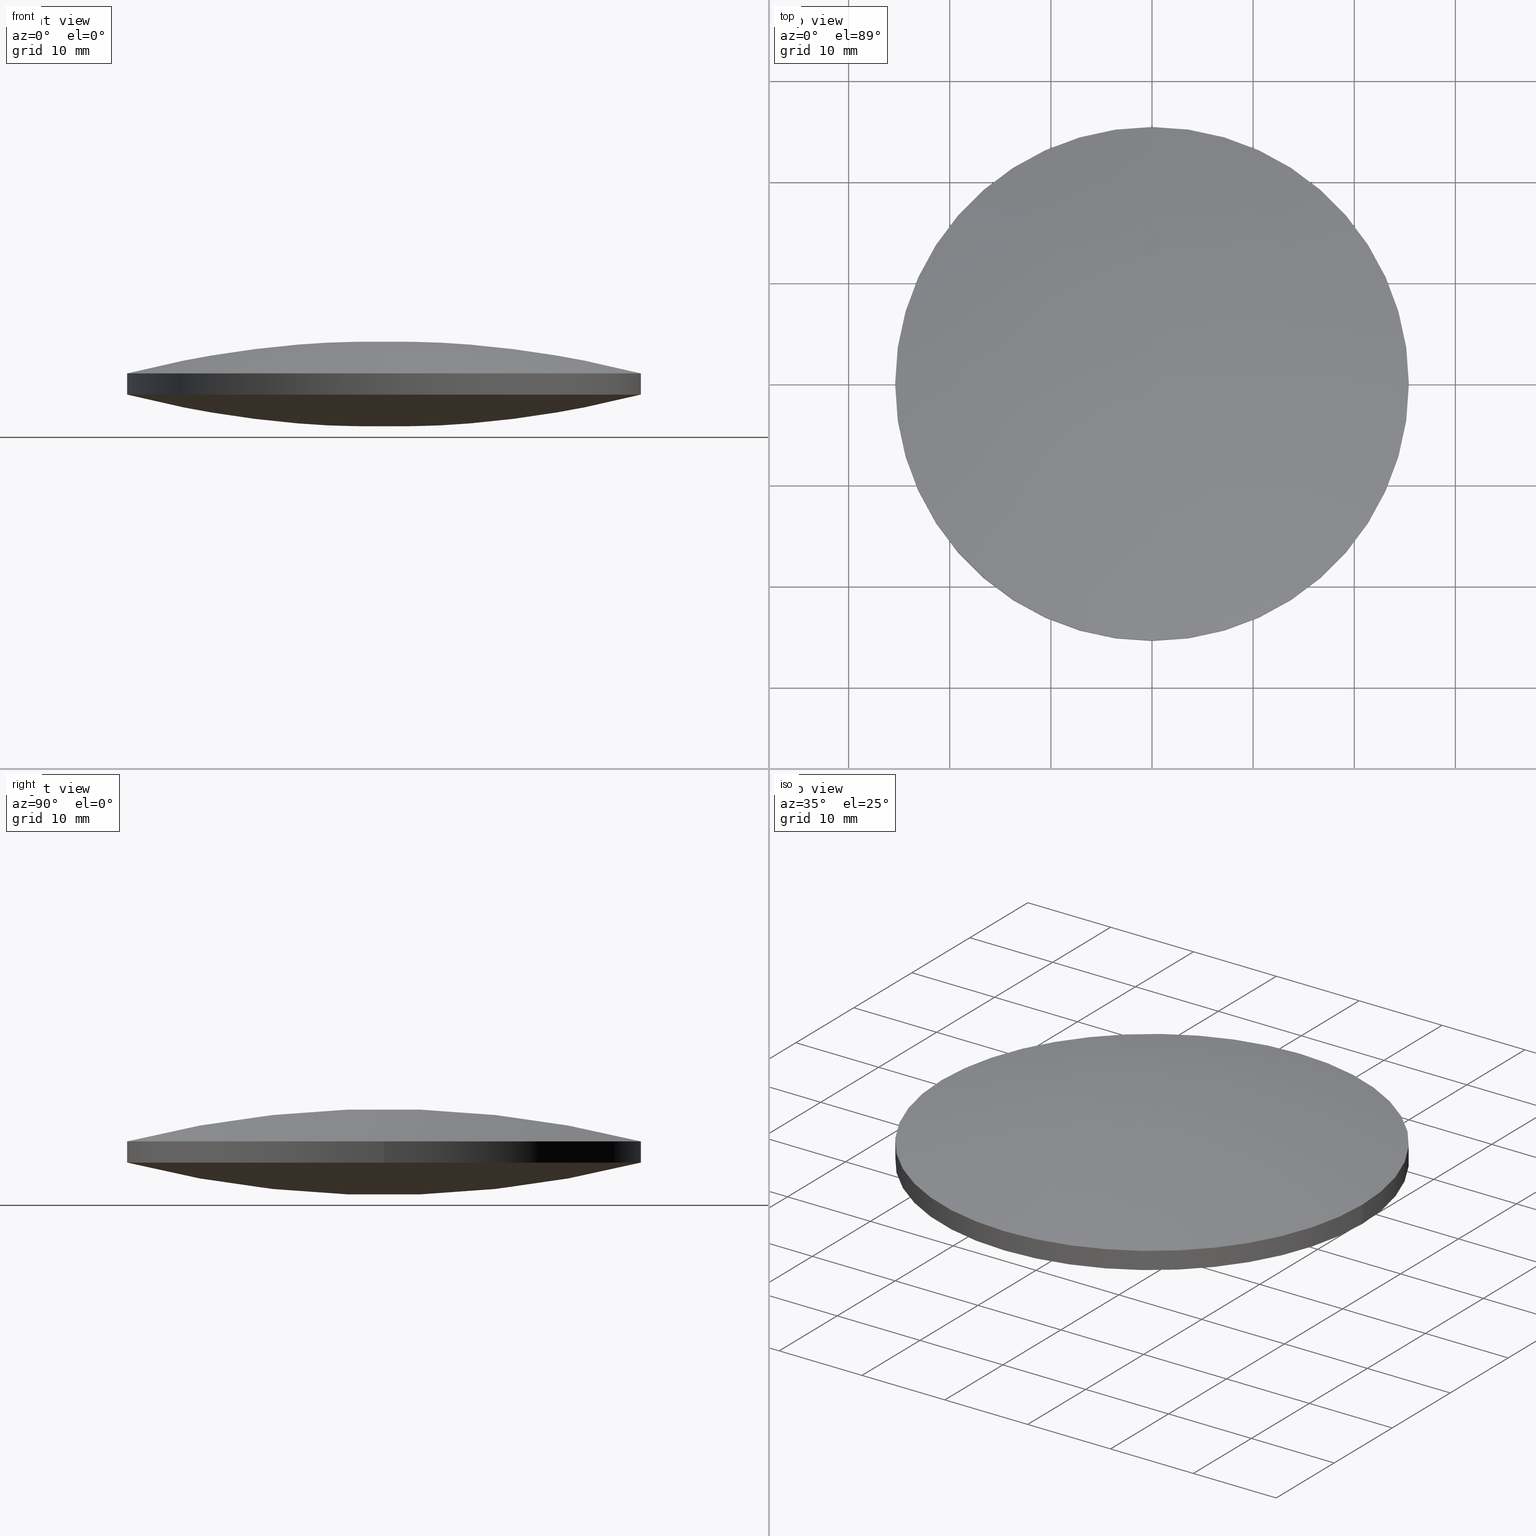
[diagram: canonical four-view strip — front | top / right | iso, engineering-drawing reading convention]
A machine part, canonical four-view strip (front | top / right | iso — engineering-drawing reading convention). The complete STEP part file that produces these views, byte-faithful:
ISO-10303-21;
HEADER;
FILE_DESCRIPTION (( 'STEP AP203' ),
    '1' );
FILE_NAME ('111-0510E BK7 bi-cx 50.8 F100.STEP',
    '2019-01-11T07:02:29',
    ( '' ),
    ( '' ),
    'SwSTEP 2.0',
    'SolidWorks 2017',
    '' );
FILE_SCHEMA (( 'CONFIG_CONTROL_DESIGN' ));
ENDSEC;

DATA;
#1 = DIRECTION ( 'NONE',  ( 1.000000000000000000, 0.0000000000000000000, 0.0000000000000000000 ) ) ;
#2 = VECTOR ( 'NONE', #277, 1000.000000000000000 ) ;
#3 = CC_DESIGN_APPROVAL ( #223, ( #38 ) ) ;
#4 = DIRECTION ( 'NONE',  ( -0.0000000000000000000, -0.0000000000000000000, -1.000000000000000000 ) ) ;
#5 = CARTESIAN_POINT ( 'NONE',  ( 9.992007221626412800E-016, 4.884981308350691100E-015, 3.203430937292290000 ) ) ;
#6 = ORIENTED_EDGE ( 'NONE', *, *, #190, .T. ) ;
#7 = CARTESIAN_POINT ( 'NONE',  ( 17.37999393760358700, 8.753207586920991500, 8.519118617901263200 ) ) ;
#8 = ORIENTED_EDGE ( 'NONE', *, *, #145, .T. ) ;
#9 = CARTESIAN_POINT ( 'NONE',  ( -2.131628207280299900E-014, 1.421085471520200100E-014, 102.3000000000000000 ) ) ;
#10 = ADVANCED_FACE ( 'NONE', ( #188 ), #226, .T. ) ;
#11 = CARTESIAN_POINT ( 'NONE',  ( 8.353687461122605700, 25.69826089171851500, 3.280358579011350100 ) ) ;
#12 = CARTESIAN_POINT ( 'NONE',  ( 25.82821182092977700, 8.753207586920993300, 2.159851191880215500 ) ) ;
#13 = APPLICATION_PROTOCOL_DEFINITION ( 'international standard', 'config_control_design', 1994, #241 ) ;
#14 = ORIENTED_EDGE ( 'NONE', *, *, #178, .T. ) ;
#15 = CARTESIAN_POINT ( 'NONE',  ( 8.724694541133880300, -8.753207586920975600, -1.117338629357474100 ) ) ;
#16 = AXIS2_PLACEMENT_3D ( 'NONE', #9, #168, #117 ) ;
#17 = EDGE_LOOP ( 'NONE', ( #169, #182, #51, #6, #268, #200 ) ) ;
#18 = EDGE_CURVE ( 'NONE', #149, #100, #58, .T. ) ;
#19 = VERTEX_POINT ( 'NONE', #23 ) ;
#20 = ORGANIZATION ( 'UNSPECIFIED', 'UNSPECIFIED', '' ) ;
#21 = PRODUCT_DEFINITION_SHAPE ( 'NONE', 'NONE',  #73 ) ;
#22 = ORIENTED_EDGE ( 'NONE', *, *, #178, .F. ) ;
#23 = CARTESIAN_POINT ( 'NONE',  ( 2.131628207280299900E-014, -25.40000000000001300, 5.296569062707712700 ) ) ;
#24 = ORIENTED_EDGE ( 'NONE', *, *, #18, .T. ) ;
#25 = CALENDAR_DATE ( 2019, 11, 1 ) ;
#26 = DIRECTION ( 'NONE',  ( -0.0000000000000000000, -0.0000000000000000000, -1.000000000000000000 ) ) ;
#27 = CARTESIAN_POINT ( 'NONE',  ( 4.510281037539698400E-014, 25.69826089171852600, 5.219641420988648600 ) ) ;
#28 = CARTESIAN_POINT ( 'NONE',  ( 25.39999999999999900, 4.884981308350691100E-015, 3.203430937292290000 ) ) ;
#29 = LINE ( 'NONE', #259, #2 ) ;
#30 = CARTESIAN_POINT ( 'NONE',  ( 16.64093072215191800, -25.69826089171851500, 4.168121886865968400 ) ) ;
#31 = CARTESIAN_POINT ( 'NONE',  ( 4.510281037539698400E-014, -8.753207586920986200, 9.617338629357462300 ) ) ;
#32 = CC_DESIGN_PERSON_AND_ORGANIZATION_ASSIGNMENT ( #111, #106, ( #123 ) ) ;
#33 = EDGE_LOOP ( 'NONE', ( #139, #42, #89 ) ) ;
#34 = PERSON_AND_ORGANIZATION ( #59, #20 ) ;
#35 = MECHANICAL_CONTEXT ( 'NONE', #241, 'mechanical' ) ;
#36 = CARTESIAN_POINT ( 'NONE',  ( 16.64093072215191800, 25.69826089171851500, 4.331878113134028900 ) ) ;
#37 = CARTESIAN_POINT ( 'NONE',  ( 17.37999393760357600, 8.753207586920993300, -0.01911861790124865700 ) ) ;
#38 = PRODUCT_DEFINITION_FORMATION_WITH_SPECIFIED_SOURCE ( 'ANY', '', #113, .NOT_KNOWN. ) ;
#39 = ORIENTED_EDGE ( 'NONE', *, *, #238, .T. ) ;
#40 = AXIS2_PLACEMENT_3D ( 'NONE', #236, #26, #257 ) ;
#41 = CARTESIAN_POINT ( 'NONE',  ( 2.131628207280299900E-014, 8.753207586920989800, 9.617338629357481800 ) ) ;
#42 = ORIENTED_EDGE ( 'NONE', *, *, #135, .T. ) ;
#43 =( GEOMETRIC_REPRESENTATION_CONTEXT ( 3 ) GLOBAL_UNCERTAINTY_ASSIGNED_CONTEXT ( ( #109 ) ) GLOBAL_UNIT_ASSIGNED_CONTEXT ( ( #77, #216, #74 ) ) REPRESENTATION_CONTEXT ( 'NONE', 'WORKASPACE' ) );
#44 = DIRECTION ( 'NONE',  ( 1.000000000000000000, 0.0000000000000000000, 0.0000000000000000000 ) ) ;
#45 = CARTESIAN_POINT ( 'NONE',  ( -16.64093072215192800, -25.69826089171849800, 4.331878113134026300 ) ) ;
#46 = CARTESIAN_POINT ( 'NONE',  ( -17.37999393760358700, 8.753207586920993300, -0.01911861790125212600 ) ) ;
#47 = COORDINATED_UNIVERSAL_TIME_OFFSET ( 2, 0, .AHEAD. ) ;
#48 = CARTESIAN_POINT ( 'NONE',  ( 16.64093072215192800, 25.69826089171852200, 4.168121886865981700 ) ) ;
#49 = CC_DESIGN_DATE_AND_TIME_ASSIGNMENT ( #291, #177, ( #123 ) ) ;
#50 = PERSON_AND_ORGANIZATION_ROLE ( 'design_owner' ) ;
#51 = ORIENTED_EDGE ( 'NONE', *, *, #71, .T. ) ;
#52 = CARTESIAN_POINT ( 'NONE',  ( 25.82821182092977700, -8.753207586920977300, 2.159851191880213700 ) ) ;
#53 = FACE_OUTER_BOUND ( 'NONE', #82, .T. ) ;
#54 = DIRECTION ( 'NONE',  ( -0.0000000000000000000, -0.0000000000000000000, -1.000000000000000000 ) ) ;
#55 = VERTEX_POINT ( 'NONE', #231 ) ;
#56 = EDGE_CURVE ( 'NONE', #100, #191, #118, .T. ) ;
#57 = PERSON_AND_ORGANIZATION ( #59, #20 ) ;
#58 = CIRCLE ( 'NONE', #181, 25.39999999999999900 ) ;
#59 = PERSON ( 'UNSPECIFIED', 'UNSPECIFIED', 'UNSPECIFIED', ('UNSPECIFIED'), ('UNSPECIFIED'), ('UNSPECIFIED') ) ;
#60 = PRODUCT_RELATED_PRODUCT_CATEGORY ( 'detail', '', ( #113 ) ) ;
#61 = CIRCLE ( 'NONE', #273, 25.39999999999999900 ) ;
#62 = CARTESIAN_POINT ( 'NONE',  ( -24.72989836085183400, -25.69826089171851500, 2.081810132074090700 ) ) ;
#63 = CARTESIAN_POINT ( 'NONE',  ( -8.353687461122604000, -25.69826089171851500, 5.219641420988644100 ) ) ;
#64 = EDGE_LOOP ( 'NONE', ( #263, #8, #292 ) ) ;
#65 = DATE_AND_TIME ( #25, #131 ) ;
#66 = CARTESIAN_POINT ( 'NONE',  ( 9.992007221626412800E-016, 4.884981308350691100E-015, 3.203430937292290000 ) ) ;
#67 = CARTESIAN_POINT ( 'NONE',  ( -25.82821182092975600, -8.753207586920977300, 2.159851191880197300 ) ) ;
#68 = CARTESIAN_POINT ( 'NONE',  ( -4.510281037539698400E-014, 8.753207586920993300, -1.117338629357461600 ) ) ;
#69 = AXIS2_PLACEMENT_3D ( 'NONE', #192, #213, #148 ) ;
#70 = CARTESIAN_POINT ( 'NONE',  ( 8.353687461122639500, 25.69826089171852600, 5.219641420988647700 ) ) ;
#71 = EDGE_CURVE ( 'NONE', #116, #55, #248, .T. ) ;
#72 = CARTESIAN_POINT ( 'NONE',  ( 17.37999393760357600, -8.753207586920975600, -0.01911861790125039100 ) ) ;
#73 = PRODUCT_DEFINITION ( 'UNKNOWN', '', #38, #81 ) ;
#74 =( NAMED_UNIT ( * ) SI_UNIT ( $, .STERADIAN. ) SOLID_ANGLE_UNIT ( ) );
#75 = CARTESIAN_POINT ( 'NONE',  ( -2.131628207280299900E-014, -8.753207586920977300, -1.117338629357474100 ) ) ;
#76 = ORIENTED_EDGE ( 'NONE', *, *, #156, .F. ) ;
#77 =( LENGTH_UNIT ( ) NAMED_UNIT ( * ) SI_UNIT ( .MILLI., .METRE. ) );
#78 = DIRECTION ( 'NONE',  ( 0.0000000000000000000, 0.0000000000000000000, 1.000000000000000000 ) ) ;
#79 = CIRCLE ( 'NONE', #167, 102.3000000000000000 ) ;
#80 = APPROVAL_ROLE ( '' ) ;
#81 = DESIGN_CONTEXT ( 'detailed design', #98, 'design' ) ;
#82 = EDGE_LOOP ( 'NONE', ( #208, #14, #24 ) ) ;
#83 = LOCAL_TIME ( 9, 2, 29.00000000000000000, #47 ) ;
#84 = CALENDAR_DATE ( 2019, 11, 1 ) ;
#85 = CARTESIAN_POINT ( 'NONE',  ( -17.37999393760357900, -8.753207586920986200, 8.519118617901250800 ) ) ;
#86 = CARTESIAN_POINT ( 'NONE',  ( 9.992007221626412800E-016, 4.884981308350691100E-015, 3.203430937292290000 ) ) ;
#87 = CC_DESIGN_PERSON_AND_ORGANIZATION_ASSIGNMENT ( #180, #50, ( #113 ) ) ;
#88 = CARTESIAN_POINT ( 'NONE',  ( 9.992007221626412800E-016, 4.884981308350691100E-015, 3.203430937292290000 ) ) ;
#89 = ORIENTED_EDGE ( 'NONE', *, *, #71, .F. ) ;
#90 = ADVANCED_FACE ( 'NONE', ( #249 ), #267, .T. ) ;
#91 = CARTESIAN_POINT ( 'NONE',  ( 4.510281037539698400E-014, -25.69826089171851200, 5.219641420988635300 ) ) ;
#92 = CARTESIAN_POINT ( 'NONE',  ( -8.353687461122637700, 25.69826089171851500, 3.280358579011361600 ) ) ;
#93 = LINE ( 'NONE', #104, #219 ) ;
#94 = CARTESIAN_POINT ( 'NONE',  ( -16.64093072215192800, 25.69826089171851500, 4.331878113134026300 ) ) ;
#95 = CARTESIAN_POINT ( 'NONE',  ( -24.72989836085182000, 25.69826089171851500, 6.418189867925888400 ) ) ;
#96 = CARTESIAN_POINT ( 'NONE',  ( -8.724694541133912300, -8.753207586920975600, -1.117338629357461600 ) ) ;
#97 = ADVANCED_FACE ( 'NONE', ( #53 ), #269, .T. ) ;
#98 = APPLICATION_CONTEXT ( 'configuration controlled 3d designs of mechanical parts and assemblies' ) ;
#99 = ADVANCED_BREP_SHAPE_REPRESENTATION ( '111-0510E BK7 bi-cx 50.8 F100', ( #276, #171 ), #43 ) ;
#100 = VERTEX_POINT ( 'NONE', #115 ) ;
#101 = CALENDAR_DATE ( 2019, 11, 1 ) ;
#102 = CARTESIAN_POINT ( 'NONE',  ( -2.131628207280299900E-014, -25.69826089171849800, 3.280358579011349600 ) ) ;
#103 = CARTESIAN_POINT ( 'NONE',  ( 24.72989836085184100, -25.69826089171849800, 6.418189867925904400 ) ) ;
#104 = CARTESIAN_POINT ( 'NONE',  ( -25.39999999999999900, 7.995584178184967200E-015, 3.203430937292290000 ) ) ;
#105 = FACE_OUTER_BOUND ( 'NONE', #130, .T. ) ;
#106 = PERSON_AND_ORGANIZATION_ROLE ( 'classification_officer' ) ;
#107 = CIRCLE ( 'NONE', #16, 102.3000000000000000 ) ;
#108 = CC_DESIGN_PERSON_AND_ORGANIZATION_ASSIGNMENT ( #195, #222, ( #38 ) ) ;
#109 = UNCERTAINTY_MEASURE_WITH_UNIT (LENGTH_MEASURE( 1.000000000000000100E-005 ), #77, 'distance_accuracy_value', 'NONE');
#110 = CIRCLE ( 'NONE', #293, 25.39999999999999900 ) ;
#111 = PERSON_AND_ORGANIZATION ( #59, #20 ) ;
#112 = CARTESIAN_POINT ( 'NONE',  ( -8.353687461122607500, 25.69826089171852200, 5.219641420988657500 ) ) ;
#113 = PRODUCT ( '111-0510E BK7 bi-cx 50.8 F100', '111-0510E BK7 bi-cx 50.8 F100', '', ( #35 ) ) ;
#114 = APPROVAL ( #199, 'UNSPECIFIED' ) ;
#115 = CARTESIAN_POINT ( 'NONE',  ( -2.131628207280299900E-014, 25.40000000000003100, 3.203430937292291300 ) ) ;
#116 = VERTEX_POINT ( 'NONE', #232 ) ;
#117 = DIRECTION ( 'NONE',  ( 0.0000000000000000000, -1.000000000000000000, 0.0000000000000000000 ) ) ;
#118 = CIRCLE ( 'NONE', #245, 25.39999999999999900 ) ;
#119 = APPROVAL_PERSON_ORGANIZATION ( #295, #223, #246 ) ;
#120 = CARTESIAN_POINT ( 'NONE',  ( -4.510281037539698400E-014, -8.753207586920977300, -1.117338629357463600 ) ) ;
#121 = DIRECTION ( 'NONE',  ( -1.000000000000000000, 0.0000000000000000000, 0.0000000000000000000 ) ) ;
#122 = PERSON_AND_ORGANIZATION_ROLE ( 'creator' ) ;
#123 = SECURITY_CLASSIFICATION ( '', '', #221 ) ;
#124 = CARTESIAN_POINT ( 'NONE',  ( 8.353687461122605700, -25.69826089171849800, 3.280358579011350100 ) ) ;
#125 = DIRECTION ( 'NONE',  ( 1.000000000000000000, 8.881784197001252300E-016, 0.0000000000000000000 ) ) ;
#126 = FACE_OUTER_BOUND ( 'NONE', #244, .T. ) ;
#127 = DIRECTION ( 'NONE',  ( 1.000000000000000000, 0.0000000000000000000, 0.0000000000000000000 ) ) ;
#128 = EDGE_CURVE ( 'NONE', #191, #274, #29, .T. ) ;
#129 = CC_DESIGN_SECURITY_CLASSIFICATION ( #123, ( #38 ) ) ;
#130 = EDGE_LOOP ( 'NONE', ( #202, #22, #133, #144, #230, #39 ) ) ;
#131 = LOCAL_TIME ( 9, 2, 29.00000000000000000, #227 ) ;
#132 = CARTESIAN_POINT ( 'NONE',  ( -25.82821182092978100, 8.753207586920988000, 6.340148808119796100 ) ) ;
#133 = ORIENTED_EDGE ( 'NONE', *, *, #251, .F. ) ;
#134 = CARTESIAN_POINT ( 'NONE',  ( -16.64093072215191800, 25.69826089171852200, 4.168121886865980000 ) ) ;
#135 = EDGE_CURVE ( 'NONE', #19, #55, #79, .T. ) ;
#136 = CARTESIAN_POINT ( 'NONE',  ( 2.131628207280299900E-014, -8.753207586920988000, 9.617338629357471200 ) ) ;
#137 = CC_DESIGN_PERSON_AND_ORGANIZATION_ASSIGNMENT ( #150, #122, ( #73 ) ) ;
#138 = CARTESIAN_POINT ( 'NONE',  ( -24.72989836085184500, 25.69826089171852200, 2.081810132074102700 ) ) ;
#139 = ORIENTED_EDGE ( 'NONE', *, *, #238, .F. ) ;
#140 = DIRECTION ( 'NONE',  ( 1.000000000000000000, 0.0000000000000000000, 0.0000000000000000000 ) ) ;
#141 = APPROVAL_PERSON_ORGANIZATION ( #57, #114, #80 ) ;
#142 = ADVANCED_FACE ( 'NONE', ( #126 ), #153, .T. ) ;
#143 = CARTESIAN_POINT ( 'NONE',  ( 8.724694541133912300, -8.753207586920982700, 9.617338629357458800 ) ) ;
#144 = ORIENTED_EDGE ( 'NONE', *, *, #128, .T. ) ;
#145 = EDGE_CURVE ( 'NONE', #224, #100, #107, .T. ) ;
#146 = CARTESIAN_POINT ( 'NONE',  ( 25.82821182092975600, 8.753207586920989800, 6.340148808119813000 ) ) ;
#147 = CARTESIAN_POINT ( 'NONE',  ( 8.724694541133880300, 8.753207586920993300, -1.117338629357471900 ) ) ;
#148 = DIRECTION ( 'NONE',  ( 1.000000000000000000, 0.0000000000000000000, 0.0000000000000000000 ) ) ;
#149 = VERTEX_POINT ( 'NONE', #211 ) ;
#150 = PERSON_AND_ORGANIZATION ( #59, #20 ) ;
#151 = DIRECTION ( 'NONE',  ( -0.0000000000000000000, -0.0000000000000000000, -1.000000000000000000 ) ) ;
#152 = APPROVAL_PERSON_ORGANIZATION ( #34, #179, #243 ) ;
#153 =( BOUNDED_SURFACE ( )  B_SPLINE_SURFACE ( 3, 3, ( 
 ( #233, #30, #256, #91 ),
 ( #260, #280, #143, #31 ),
 ( #146, #7, #239, #282 ),
 ( #210, #48, #70, #27 ) ),
 .UNSPECIFIED., .F., .F., .T. ) 
 B_SPLINE_SURFACE_WITH_KNOTS ( ( 4, 4 ),
 ( 4, 4 ),
 ( 0.0000000000000000000, 1.000000000000000000 ),
 ( 0.0000000000000000000, 1.000000000000000000 ),
 .UNSPECIFIED. ) 
 GEOMETRIC_REPRESENTATION_ITEM ( )  RATIONAL_B_SPLINE_SURFACE ( (
 ( 1.000000000000000000, 0.9946974155303642800, 0.9946974155303642800, 1.000000000000000000),
 ( 0.9786226224893361800, 0.9734333933696900400, 0.9734333933696900400, 0.9786226224893361800),
 ( 0.9786226224893361800, 0.9734333933696900400, 0.9734333933696900400, 0.9786226224893361800),
 ( 1.000000000000000000, 0.9946974155303642800, 0.9946974155303642800, 1.000000000000000000) ) ) 
 REPRESENTATION_ITEM ( '' )  SURFACE ( )  );
#154 = CLOSED_SHELL ( 'NONE', ( #281, #10, #90, #97, #235, #142 ) ) ;
#155 = CIRCLE ( 'NONE', #198, 25.39999999999999900 ) ;
#156 = EDGE_CURVE ( 'NONE', #274, #19, #250, .T. ) ;
#157 = CARTESIAN_POINT ( 'NONE',  ( -4.510281037539698400E-014, -25.69826089171849800, 3.280358579011359400 ) ) ;
#158 = CARTESIAN_POINT ( 'NONE',  ( -8.353687461122637700, -25.69826089171849800, 3.280358579011361600 ) ) ;
#159 = DIRECTION ( 'NONE',  ( 1.000000000000000000, 0.0000000000000000000, 0.0000000000000000000 ) ) ;
#160 =( BOUNDED_SURFACE ( )  B_SPLINE_SURFACE ( 3, 3, ( 
 ( #102, #124, #266, #103 ),
 ( #75, #15, #72, #52 ),
 ( #176, #147, #37, #12 ),
 ( #242, #11, #36, #218 ) ),
 .UNSPECIFIED., .F., .F., .F. ) 
 B_SPLINE_SURFACE_WITH_KNOTS ( ( 4, 4 ),
 ( 4, 4 ),
 ( 0.0000000000000000000, 1.000000000000000000 ),
 ( 0.0000000000000000000, 1.000000000000000000 ),
 .UNSPECIFIED. ) 
 GEOMETRIC_REPRESENTATION_ITEM ( )  RATIONAL_B_SPLINE_SURFACE ( (
 ( 1.000000000000000000, 0.9946974155303642800, 0.9946974155303642800, 1.000000000000000000),
 ( 0.9786226224893361800, 0.9734333933696900400, 0.9734333933696900400, 0.9786226224893361800),
 ( 0.9786226224893361800, 0.9734333933696900400, 0.9734333933696900400, 0.9786226224893361800),
 ( 1.000000000000000000, 0.9946974155303642800, 0.9946974155303642800, 1.000000000000000000) ) ) 
 REPRESENTATION_ITEM ( '' )  SURFACE ( )  );
#161 = CARTESIAN_POINT ( 'NONE',  ( -8.724694541133880300, -8.753207586920986200, 9.617338629357471200 ) ) ;
#162 = CARTESIAN_POINT ( 'NONE',  ( -17.37999393760358700, -8.753207586920975600, -0.01911861790125386100 ) ) ;
#163 = CYLINDRICAL_SURFACE ( 'NONE', #258, 25.39999999999999900 ) ;
#164 = CARTESIAN_POINT ( 'NONE',  ( -8.724694541133912300, 8.753207586920993300, -1.117338629357459900 ) ) ;
#165 = APPROVAL_DATE_TIME ( #65, #114 ) ;
#166 = AXIS2_PLACEMENT_3D ( 'NONE', #252, #4, #44 ) ;
#167 = AXIS2_PLACEMENT_3D ( 'NONE', #189, #121, #279 ) ;
#168 = DIRECTION ( 'NONE',  ( 1.000000000000000000, 0.0000000000000000000, 0.0000000000000000000 ) ) ;
#169 = ORIENTED_EDGE ( 'NONE', *, *, #18, .F. ) ;
#170 = CALENDAR_DATE ( 2019, 11, 1 ) ;
#171 = AXIS2_PLACEMENT_3D ( 'NONE', #194, #78, #127 ) ;
#172 = DIRECTION ( 'NONE',  ( 1.000000000000000000, 0.0000000000000000000, 0.0000000000000000000 ) ) ;
#173 = DIRECTION ( 'NONE',  ( 0.0000000000000000000, 0.0000000000000000000, 1.000000000000000000 ) ) ;
#174 = DIRECTION ( 'NONE',  ( 1.000000000000000000, 0.0000000000000000000, 0.0000000000000000000 ) ) ;
#175 = CALENDAR_DATE ( 2019, 11, 1 ) ;
#176 = CARTESIAN_POINT ( 'NONE',  ( -2.131628207280299900E-014, 8.753207586920993300, -1.117338629357472100 ) ) ;
#177 = DATE_TIME_ROLE ( 'classification_date' ) ;
#178 = EDGE_CURVE ( 'NONE', #224, #149, #204, .T. ) ;
#179 = APPROVAL ( #262, 'UNSPECIFIED' ) ;
#180 = PERSON_AND_ORGANIZATION ( #59, #20 ) ;
#181 = AXIS2_PLACEMENT_3D ( 'NONE', #86, #253, #1 ) ;
#182 = ORIENTED_EDGE ( 'NONE', *, *, #201, .T. ) ;
#183 = CARTESIAN_POINT ( 'NONE',  ( -16.64093072215191100, -25.69826089171851500, 4.168121886865966600 ) ) ;
#184 = CARTESIAN_POINT ( 'NONE',  ( -8.724694541133880300, 8.753207586920989800, 9.617338629357483600 ) ) ;
#185 = CC_DESIGN_APPROVAL ( #114, ( #123 ) ) ;
#186 = CARTESIAN_POINT ( 'NONE',  ( 2.131628207280299900E-014, 25.69826089171852200, 5.219641420988657500 ) ) ;
#187 = CARTESIAN_POINT ( 'NONE',  ( -24.72989836085182000, -25.69826089171849800, 6.418189867925888400 ) ) ;
#188 = FACE_OUTER_BOUND ( 'NONE', #33, .T. ) ;
#189 = CARTESIAN_POINT ( 'NONE',  ( 2.131628207280299900E-014, 1.421085471520200100E-014, -93.79999999999999700 ) ) ;
#190 = EDGE_CURVE ( 'NONE', #55, #274, #61, .T. ) ;
#191 = VERTEX_POINT ( 'NONE', #28 ) ;
#192 = CARTESIAN_POINT ( 'NONE',  ( 9.992007221626412800E-016, 4.884981308350691100E-015, 3.203430937292290000 ) ) ;
#193 = DIRECTION ( 'NONE',  ( -0.0000000000000000000, -0.0000000000000000000, -1.000000000000000000 ) ) ;
#194 = CARTESIAN_POINT ( 'NONE',  ( 0.0000000000000000000, 0.0000000000000000000, 0.0000000000000000000 ) ) ;
#195 = PERSON_AND_ORGANIZATION ( #59, #20 ) ;
#196 = CARTESIAN_POINT ( 'NONE',  ( 9.992007221626412800E-016, 4.884981308350691100E-015, 3.203430937292290000 ) ) ;
#197 = CARTESIAN_POINT ( 'NONE',  ( -2.131628207280299900E-014, -25.40000000000001300, 3.203430937292291300 ) ) ;
#198 = AXIS2_PLACEMENT_3D ( 'NONE', #217, #193, #174 ) ;
#199 = APPROVAL_STATUS ( 'not_yet_approved' ) ;
#200 = ORIENTED_EDGE ( 'NONE', *, *, #56, .F. ) ;
#201 = EDGE_CURVE ( 'NONE', #149, #116, #93, .T. ) ;
#202 = ORIENTED_EDGE ( 'NONE', *, *, #201, .F. ) ;
#203 = LOCAL_TIME ( 9, 2, 29.00000000000000000, #212 ) ;
#204 = CIRCLE ( 'NONE', #69, 25.39999999999999900 ) ;
#205 = CC_DESIGN_DATE_AND_TIME_ASSIGNMENT ( #234, #287, ( #73 ) ) ;
#206 = CARTESIAN_POINT ( 'NONE',  ( -25.82821182092977700, -8.753207586920988000, 6.340148808119784500 ) ) ;
#207 = CARTESIAN_POINT ( 'NONE',  ( 2.131628207280299900E-014, -25.69826089171851500, 5.219641420988644100 ) ) ;
#208 = ORIENTED_EDGE ( 'NONE', *, *, #145, .F. ) ;
#209 = APPROVAL_DATE_TIME ( #220, #179 ) ;
#210 = CARTESIAN_POINT ( 'NONE',  ( 24.72989836085182300, 25.69826089171852200, 2.081810132074118700 ) ) ;
#211 = CARTESIAN_POINT ( 'NONE',  ( -25.39999999999999900, 7.995584178184967200E-015, 3.203430937292290000 ) ) ;
#212 = COORDINATED_UNIVERSAL_TIME_OFFSET ( 2, 0, .AHEAD. ) ;
#213 = DIRECTION ( 'NONE',  ( -0.0000000000000000000, -0.0000000000000000000, -1.000000000000000000 ) ) ;
#214 = CARTESIAN_POINT ( 'NONE',  ( -4.510281037539698400E-014, 25.69826089171851500, 3.280358579011359400 ) ) ;
#215 = DIRECTION ( 'NONE',  ( 0.0000000000000000000, 0.0000000000000000000, 1.000000000000000000 ) ) ;
#216 =( NAMED_UNIT ( * ) PLANE_ANGLE_UNIT ( ) SI_UNIT ( $, .RADIAN. ) );
#217 = CARTESIAN_POINT ( 'NONE',  ( 9.992007221626412800E-016, 4.884981308350691100E-015, 5.296569062707710000 ) ) ;
#218 = CARTESIAN_POINT ( 'NONE',  ( 24.72989836085184100, 25.69826089171851500, 6.418189867925904400 ) ) ;
#219 = VECTOR ( 'NONE', #173, 1000.000000000000000 ) ;
#220 = DATE_AND_TIME ( #170, #203 ) ;
#221 = SECURITY_CLASSIFICATION_LEVEL ( 'unclassified' ) ;
#222 = PERSON_AND_ORGANIZATION_ROLE ( 'creator' ) ;
#223 = APPROVAL ( #284, 'UNSPECIFIED' ) ;
#224 = VERTEX_POINT ( 'NONE', #197 ) ;
#225 = DATE_AND_TIME ( #84, #270 ) ;
#226 =( BOUNDED_SURFACE ( )  B_SPLINE_SURFACE ( 3, 3, ( 
 ( #207, #63, #183, #62 ),
 ( #136, #161, #85, #206 ),
 ( #41, #184, #228, #132 ),
 ( #186, #112, #134, #138 ) ),
 .UNSPECIFIED., .F., .F., .T. ) 
 B_SPLINE_SURFACE_WITH_KNOTS ( ( 4, 4 ),
 ( 4, 4 ),
 ( 0.0000000000000000000, 1.000000000000000000 ),
 ( 0.0000000000000000000, 1.000000000000000000 ),
 .UNSPECIFIED. ) 
 GEOMETRIC_REPRESENTATION_ITEM ( )  RATIONAL_B_SPLINE_SURFACE ( (
 ( 1.000000000000000000, 0.9946974155303642800, 0.9946974155303642800, 1.000000000000000000),
 ( 0.9786226224893361800, 0.9734333933696900400, 0.9734333933696900400, 0.9786226224893361800),
 ( 0.9786226224893361800, 0.9734333933696900400, 0.9734333933696900400, 0.9786226224893361800),
 ( 1.000000000000000000, 0.9946974155303642800, 0.9946974155303642800, 1.000000000000000000) ) ) 
 REPRESENTATION_ITEM ( '' )  SURFACE ( )  );
#227 = COORDINATED_UNIVERSAL_TIME_OFFSET ( 2, 0, .AHEAD. ) ;
#228 = CARTESIAN_POINT ( 'NONE',  ( -17.37999393760357900, 8.753207586920989800, 8.519118617901259700 ) ) ;
#229 = DIRECTION ( 'NONE',  ( 0.0000000000000000000, 0.0000000000000000000, 1.000000000000000000 ) ) ;
#230 = ORIENTED_EDGE ( 'NONE', *, *, #156, .T. ) ;
#231 = CARTESIAN_POINT ( 'NONE',  ( 2.131628207280299900E-014, 25.40000000000002700, 5.296569062707712700 ) ) ;
#232 = CARTESIAN_POINT ( 'NONE',  ( -25.39999999999999900, 7.995584178184967200E-015, 5.296569062707710000 ) ) ;
#233 = CARTESIAN_POINT ( 'NONE',  ( 24.72989836085181300, -25.69826089171851500, 2.081810132074104900 ) ) ;
#234 = DATE_AND_TIME ( #101, #255 ) ;
#235 = ADVANCED_FACE ( 'NONE', ( #105 ), #163, .T. ) ;
#236 = CARTESIAN_POINT ( 'NONE',  ( 9.992007221626412800E-016, 4.884981308350691100E-015, 5.296569062707710000 ) ) ;
#237 = CARTESIAN_POINT ( 'NONE',  ( -25.82821182092975600, 8.753207586920993300, 2.159851191880199500 ) ) ;
#238 = EDGE_CURVE ( 'NONE', #19, #116, #155, .T. ) ;
#239 = CARTESIAN_POINT ( 'NONE',  ( 8.724694541133912300, 8.753207586920991500, 9.617338629357471200 ) ) ;
#240 = CC_DESIGN_PERSON_AND_ORGANIZATION_ASSIGNMENT ( #264, #247, ( #38 ) ) ;
#241 = APPLICATION_CONTEXT ( 'configuration controlled 3d designs of mechanical parts and assemblies' ) ;
#242 = CARTESIAN_POINT ( 'NONE',  ( -2.131628207280299900E-014, 25.69826089171851500, 3.280358579011349600 ) ) ;
#243 = APPROVAL_ROLE ( '' ) ;
#244 = EDGE_LOOP ( 'NONE', ( #254, #76, #285 ) ) ;
#245 = AXIS2_PLACEMENT_3D ( 'NONE', #88, #272, #140 ) ;
#246 = APPROVAL_ROLE ( '' ) ;
#247 = PERSON_AND_ORGANIZATION_ROLE ( 'design_supplier' ) ;
#248 = CIRCLE ( 'NONE', #166, 25.39999999999999900 ) ;
#249 = FACE_OUTER_BOUND ( 'NONE', #17, .T. ) ;
#250 = CIRCLE ( 'NONE', #40, 25.39999999999999900 ) ;
#251 = EDGE_CURVE ( 'NONE', #191, #224, #110, .T. ) ;
#252 = CARTESIAN_POINT ( 'NONE',  ( 9.992007221626412800E-016, 4.884981308350691100E-015, 5.296569062707710000 ) ) ;
#253 = DIRECTION ( 'NONE',  ( -0.0000000000000000000, -0.0000000000000000000, -1.000000000000000000 ) ) ;
#254 = ORIENTED_EDGE ( 'NONE', *, *, #135, .F. ) ;
#255 = LOCAL_TIME ( 9, 2, 29.00000000000000000, #294 ) ;
#256 = CARTESIAN_POINT ( 'NONE',  ( 8.353687461122635900, -25.69826089171851200, 5.219641420988633500 ) ) ;
#257 = DIRECTION ( 'NONE',  ( 1.000000000000000000, 0.0000000000000000000, 0.0000000000000000000 ) ) ;
#258 = AXIS2_PLACEMENT_3D ( 'NONE', #66, #215, #288 ) ;
#259 = CARTESIAN_POINT ( 'NONE',  ( 25.39999999999999900, 4.884981308350691100E-015, 3.203430937292290000 ) ) ;
#260 = CARTESIAN_POINT ( 'NONE',  ( 25.82821182092975600, -8.753207586920988000, 6.340148808119800500 ) ) ;
#261 = APPLICATION_PROTOCOL_DEFINITION ( 'international standard', 'config_control_design', 1994, #98 ) ;
#262 = APPROVAL_STATUS ( 'not_yet_approved' ) ;
#263 = ORIENTED_EDGE ( 'NONE', *, *, #251, .T. ) ;
#264 = PERSON_AND_ORGANIZATION ( #59, #20 ) ;
#265 = CARTESIAN_POINT ( 'NONE',  ( 9.992007221626412800E-016, 4.884981308350691100E-015, 5.296569062707710000 ) ) ;
#266 = CARTESIAN_POINT ( 'NONE',  ( 16.64093072215191800, -25.69826089171849800, 4.331878113134028900 ) ) ;
#267 = CYLINDRICAL_SURFACE ( 'NONE', #271, 25.39999999999999900 ) ;
#268 = ORIENTED_EDGE ( 'NONE', *, *, #128, .F. ) ;
#269 =( BOUNDED_SURFACE ( )  B_SPLINE_SURFACE ( 3, 3, ( 
 ( #187, #45, #158, #157 ),
 ( #67, #162, #96, #120 ),
 ( #237, #46, #164, #68 ),
 ( #95, #94, #92, #214 ) ),
 .UNSPECIFIED., .F., .F., .F. ) 
 B_SPLINE_SURFACE_WITH_KNOTS ( ( 4, 4 ),
 ( 4, 4 ),
 ( 0.0000000000000000000, 1.000000000000000000 ),
 ( 0.0000000000000000000, 1.000000000000000000 ),
 .UNSPECIFIED. ) 
 GEOMETRIC_REPRESENTATION_ITEM ( )  RATIONAL_B_SPLINE_SURFACE ( (
 ( 1.000000000000000000, 0.9946974155303642800, 0.9946974155303642800, 1.000000000000000000),
 ( 0.9786226224893361800, 0.9734333933696900400, 0.9734333933696900400, 0.9786226224893361800),
 ( 0.9786226224893361800, 0.9734333933696900400, 0.9734333933696900400, 0.9786226224893361800),
 ( 1.000000000000000000, 0.9946974155303642800, 0.9946974155303642800, 1.000000000000000000) ) ) 
 REPRESENTATION_ITEM ( '' )  SURFACE ( )  );
#270 = LOCAL_TIME ( 9, 2, 29.00000000000000000, #275 ) ;
#271 = AXIS2_PLACEMENT_3D ( 'NONE', #5, #229, #159 ) ;
#272 = DIRECTION ( 'NONE',  ( -0.0000000000000000000, -0.0000000000000000000, -1.000000000000000000 ) ) ;
#273 = AXIS2_PLACEMENT_3D ( 'NONE', #265, #151, #125 ) ;
#274 = VERTEX_POINT ( 'NONE', #289 ) ;
#275 = COORDINATED_UNIVERSAL_TIME_OFFSET ( 2, 0, .AHEAD. ) ;
#276 = MANIFOLD_SOLID_BREP ( 'Imported1', #154 ) ;
#277 = DIRECTION ( 'NONE',  ( 0.0000000000000000000, 0.0000000000000000000, 1.000000000000000000 ) ) ;
#278 = SHAPE_DEFINITION_REPRESENTATION ( #21, #99 ) ;
#279 = DIRECTION ( 'NONE',  ( 0.0000000000000000000, -1.000000000000000000, 5.426309993280335100E-016 ) ) ;
#280 = CARTESIAN_POINT ( 'NONE',  ( 17.37999393760358300, -8.753207586920982700, 8.519118617901252600 ) ) ;
#281 = ADVANCED_FACE ( 'NONE', ( #290 ), #160, .T. ) ;
#282 = CARTESIAN_POINT ( 'NONE',  ( 4.510281037539698400E-014, 8.753207586920991500, 9.617338629357473000 ) ) ;
#283 = CC_DESIGN_APPROVAL ( #179, ( #73 ) ) ;
#284 = APPROVAL_STATUS ( 'not_yet_approved' ) ;
#285 = ORIENTED_EDGE ( 'NONE', *, *, #190, .F. ) ;
#286 = APPROVAL_DATE_TIME ( #225, #223 ) ;
#287 = DATE_TIME_ROLE ( 'creation_date' ) ;
#288 = DIRECTION ( 'NONE',  ( 1.000000000000000000, 0.0000000000000000000, 0.0000000000000000000 ) ) ;
#289 = CARTESIAN_POINT ( 'NONE',  ( 25.39999999999999900, 4.884981308350691100E-015, 5.296569062707710000 ) ) ;
#290 = FACE_OUTER_BOUND ( 'NONE', #64, .T. ) ;
#291 = DATE_AND_TIME ( #175, #83 ) ;
#292 = ORIENTED_EDGE ( 'NONE', *, *, #56, .T. ) ;
#293 = AXIS2_PLACEMENT_3D ( 'NONE', #196, #54, #172 ) ;
#294 = COORDINATED_UNIVERSAL_TIME_OFFSET ( 2, 0, .AHEAD. ) ;
#295 = PERSON_AND_ORGANIZATION ( #59, #20 ) ;
ENDSEC;
END-ISO-10303-21;
